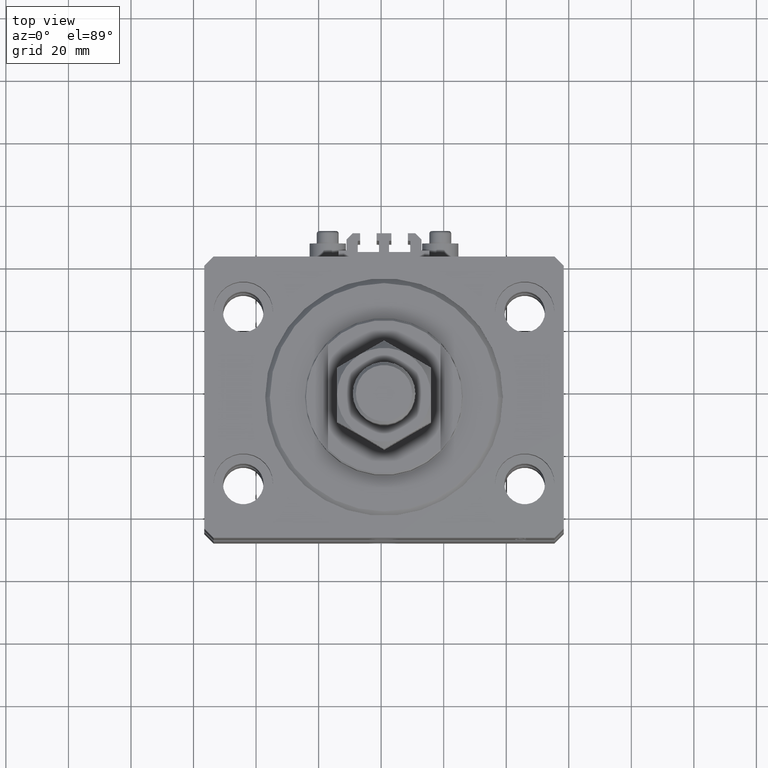
[diagram: clean part render]
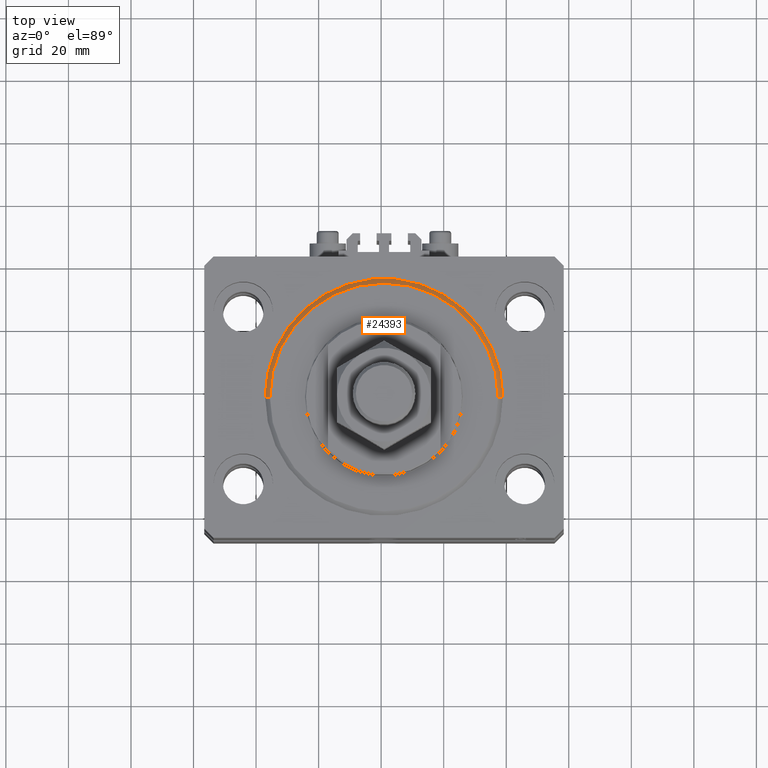
[diagram: same view with one face highlighted and labeled with its STEP entity id]
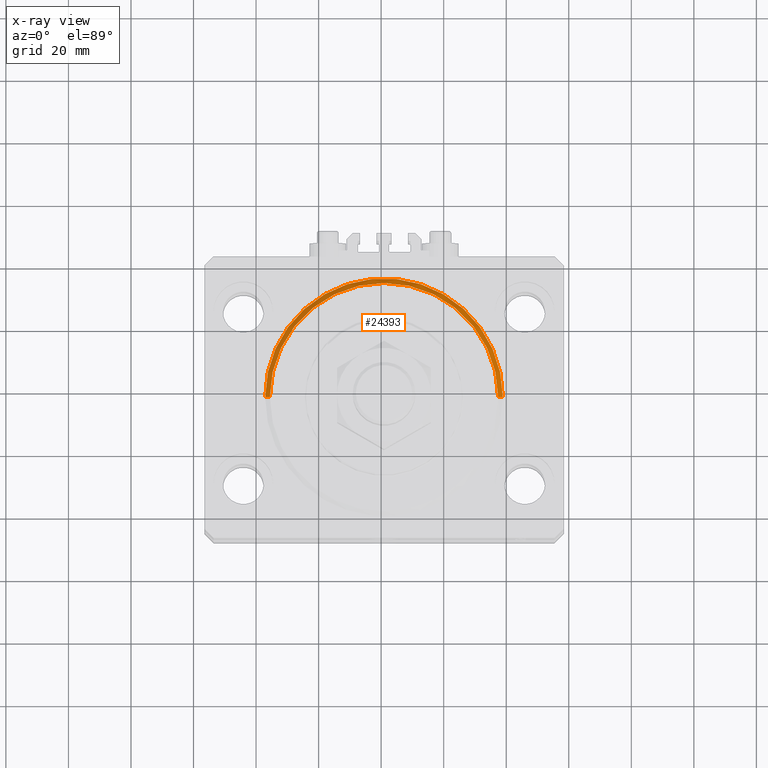
[diagram: x-ray of the same camera — body ghosted, the highlighted face saturated]
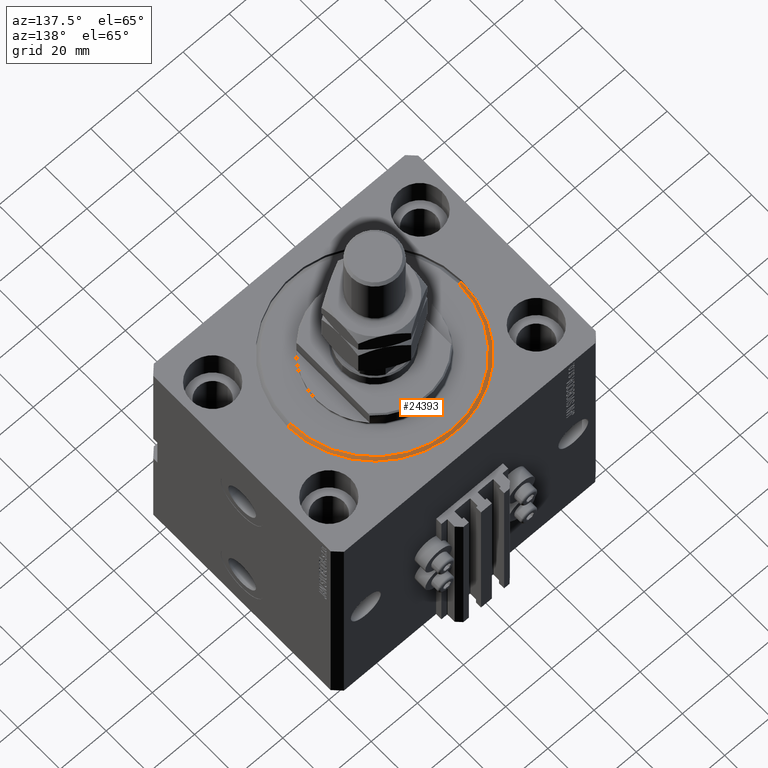
[diagram: same view with one face highlighted and labeled with its STEP entity id]
A machine part, top view. The second image highlights one B-rep face of the part: STEP entity #24393.
The next image is the same camera in x-ray: the body ghosted, the highlighted face saturated — about 0% of this face is hidden behind the body in this view.
A second angle (auxiliary view) of the same face is appended — the face is thin or edge-on in the first view.
In plain terms, the highlighted conical surface has half-angle 45 deg.
Its self-contained STEP definition (entity closure, byte-faithful):
#1540 = AXIS2_PLACEMENT_3D ( 'NONE', #41568, #2532, #6389 ) ;
#2294 = LINE ( 'NONE', #13860, #16932 ) ;
#2532 = DIRECTION ( 'NONE',  ( -0.000000000000000000, -0.000000000000000000, 1.000000000000000000 ) ) ;
#2550 = DIRECTION ( 'NONE',  ( 0.7071067811865491270, 0.000000000000000000, 0.7071067811865459074 ) ) ;
#3386 = CARTESIAN_POINT ( 'NONE',  ( -38.00000000000000000, 4.653657836759941941E-15, 1.499999999999994449 ) ) ;
#3442 = VERTEX_POINT ( 'NONE', #29391 ) ;
#3528 = AXIS2_PLACEMENT_3D ( 'NONE', #23305, #19207, #38982 ) ;
#4804 = VERTEX_POINT ( 'NONE', #12033 ) ;
#6389 = DIRECTION ( 'NONE',  ( 1.000000000000000000, 0.000000000000000000, 0.000000000000000000 ) ) ;
#10387 = EDGE_CURVE ( 'NONE', #4804, #3442, #18790, .T. ) ;
#10496 = FACE_OUTER_BOUND ( 'NONE', #17804, .T. ) ;
#12033 = CARTESIAN_POINT ( 'NONE',  ( -36.50000000000000000, 4.561809326823889791E-15, 0.000000000000000000 ) ) ;
#13860 = CARTESIAN_POINT ( 'NONE',  ( 38.00000000000000000, 0.000000000000000000, 1.499999999999994449 ) ) ;
#14793 = CARTESIAN_POINT ( 'NONE',  ( 0.000000000000000000, 0.000000000000000000, 0.000000000000000000 ) ) ;
#16276 = ORIENTED_EDGE ( 'NONE', *, *, #10387, .T. ) ;
#16932 = VECTOR ( 'NONE', #2550, 1000.000000000000114 ) ;
#17804 = EDGE_LOOP ( 'NONE', ( #20570, #16276, #33764, #30246 ) ) ;
#17832 = VECTOR ( 'NONE', #42409, 1000.000000000000114 ) ;
#18790 = LINE ( 'NONE', #3386, #17832 ) ;
#19207 = DIRECTION ( 'NONE',  ( -0.000000000000000000, -0.000000000000000000, 1.000000000000000000 ) ) ;
#20570 = ORIENTED_EDGE ( 'NONE', *, *, #48149, .F. ) ;
#23305 = CARTESIAN_POINT ( 'NONE',  ( 0.000000000000000000, 0.000000000000000000, 1.499999999999994449 ) ) ;
#24393 = ADVANCED_FACE ( 'NONE', ( #10496 ), #46669, .T. ) ;
#27120 = AXIS2_PLACEMENT_3D ( 'NONE', #14793, #42502, #38162 ) ;
#28844 = VERTEX_POINT ( 'NONE', #45163 ) ;
#28970 = CIRCLE ( 'NONE', #3528, 38.00000000000000000 ) ;
#29391 = CARTESIAN_POINT ( 'NONE',  ( -38.00000000000000000, 0.000000000000000000, 1.499999999999994449 ) ) ;
#30246 = ORIENTED_EDGE ( 'NONE', *, *, #44519, .F. ) ;
#31203 = CIRCLE ( 'NONE', #27120, 36.50000000000000000 ) ;
#31940 = VERTEX_POINT ( 'NONE', #44233 ) ;
#33764 = ORIENTED_EDGE ( 'NONE', *, *, #36084, .F. ) ;
#36084 = EDGE_CURVE ( 'NONE', #31940, #3442, #28970, .T. ) ;
#38162 = DIRECTION ( 'NONE',  ( 1.000000000000000000, 0.000000000000000000, 0.000000000000000000 ) ) ;
#38982 = DIRECTION ( 'NONE',  ( 1.000000000000000000, 0.000000000000000000, 0.000000000000000000 ) ) ;
#41568 = CARTESIAN_POINT ( 'NONE',  ( 0.000000000000000000, 0.000000000000000000, 1.499999999999994449 ) ) ;
#42409 = DIRECTION ( 'NONE',  ( -0.7071067811865491270, 8.659560562354953812E-17, 0.7071067811865459074 ) ) ;
#42502 = DIRECTION ( 'NONE',  ( -0.000000000000000000, -0.000000000000000000, -1.000000000000000000 ) ) ;
#44233 = CARTESIAN_POINT ( 'NONE',  ( 38.00000000000000000, 4.653657836759941941E-15, 1.499999999999994449 ) ) ;
#44519 = EDGE_CURVE ( 'NONE', #28844, #31940, #2294, .T. ) ;
#45163 = CARTESIAN_POINT ( 'NONE',  ( 36.50000000000000000, 0.000000000000000000, 0.000000000000000000 ) ) ;
#46669 = CONICAL_SURFACE ( 'NONE', #1540, 38.00000000000000000, 0.7853981633974506105 ) ;
#48149 = EDGE_CURVE ( 'NONE', #4804, #28844, #31203, .T. ) ;